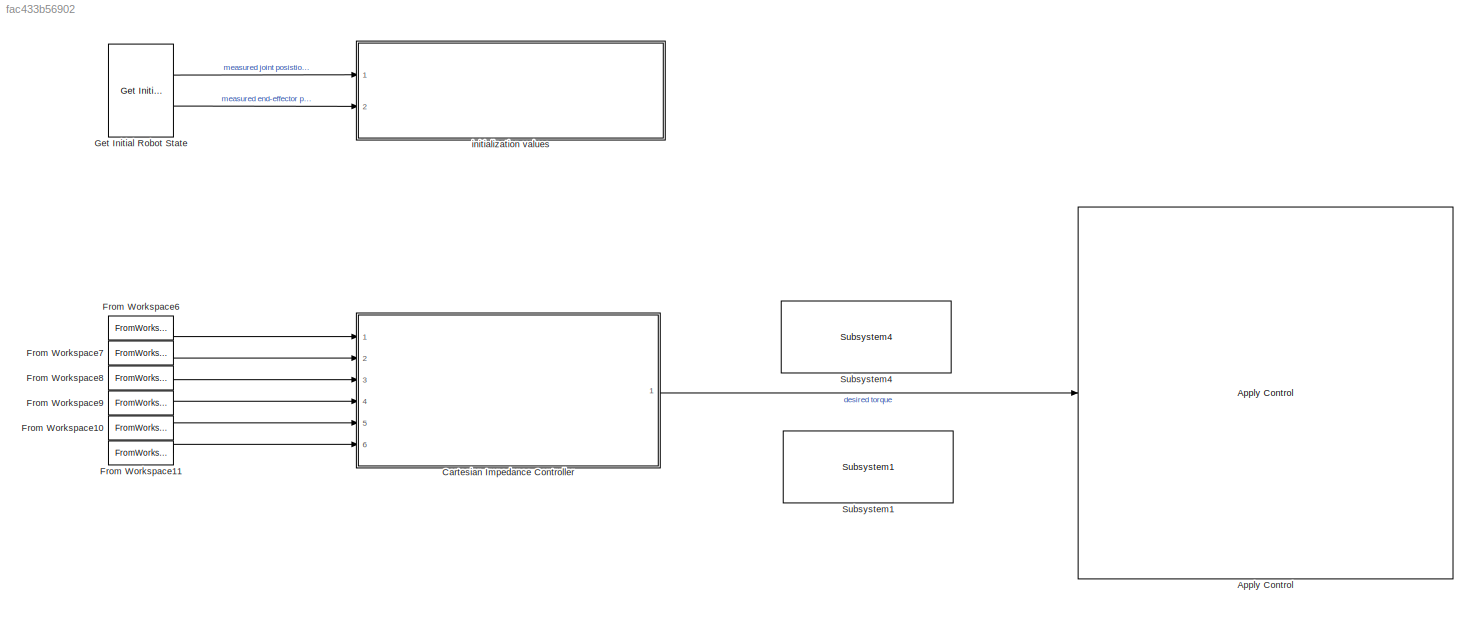
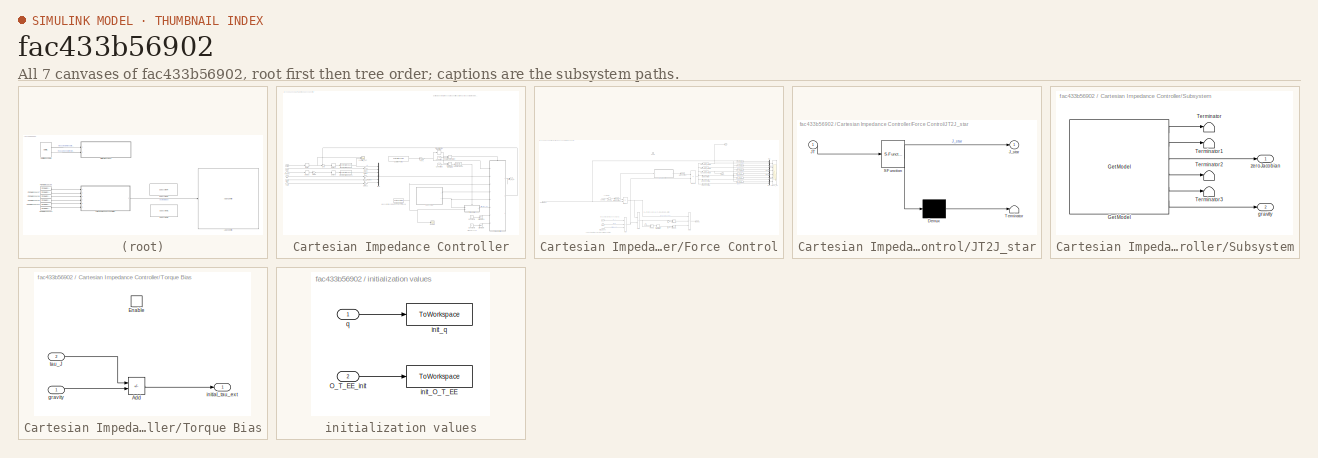
[diagram: thumbnail index - all 7 canvases of the model, root first then tree order]
MODEL slx_fac433b56902
KIND model
CONFIG AbsTol = auto
CONFIG EnableMultiTasking = on
CONFIG FixedStep = 0.001
CONFIG MaxStep = auto
CONFIG MinStep = auto
CONFIG PreLoadFcn = demos_common_configs();
CONFIG RelTol = 1e-3
CONFIG SampleTimeConstraint = Unconstrained
CONFIG SolverName = FixedStepDiscrete
CONFIG StartTime = 0.0
CONFIG StopTime = inf
BLOCK [Reference] Apply Control  REF=franka_simulink_library/Apply Control
  Ports = [1]
  SourceBlock = franka_simulink_library/Apply Control
  SourceProductName = Franka Emika
  UserDataPersistent = on
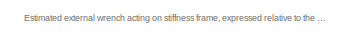
[diagram: Cartesian Impedance Controller - part 1/3, top right region]
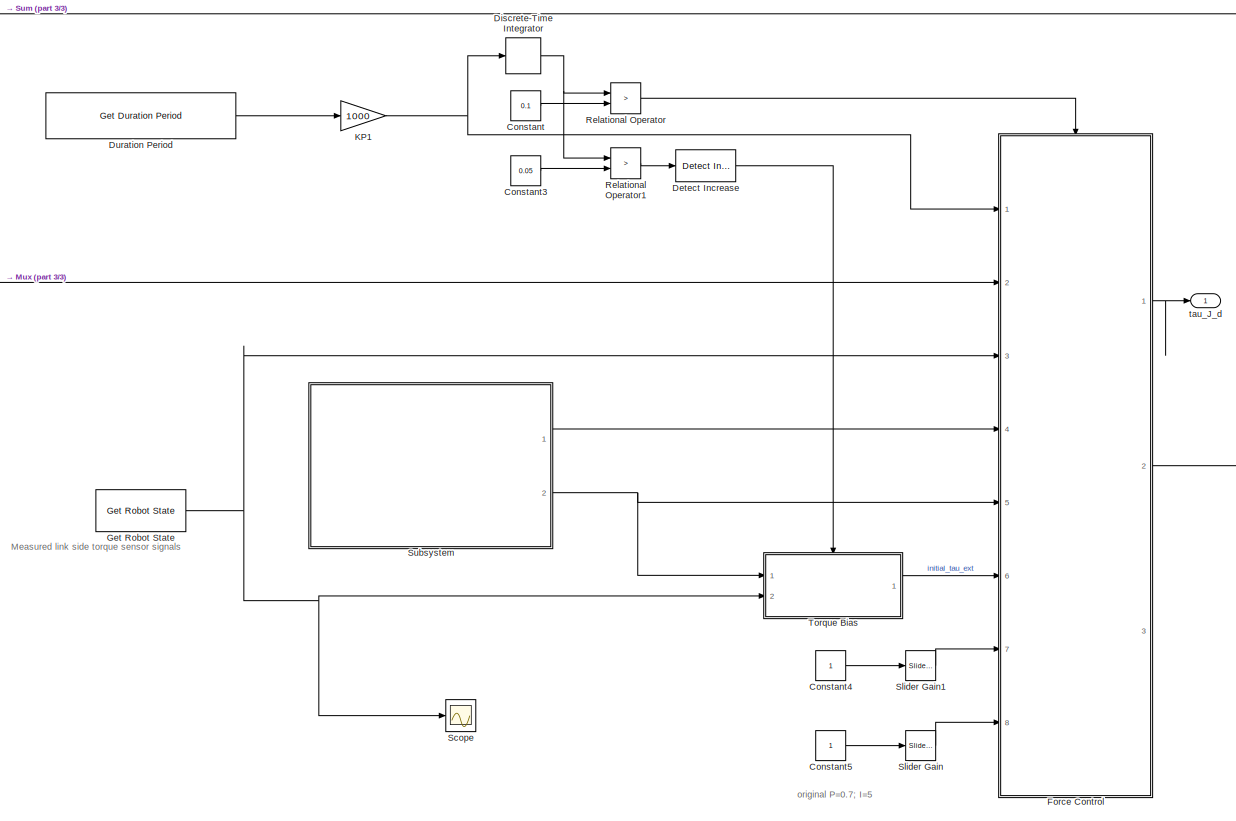
[diagram: Cartesian Impedance Controller - part 2/3, bottom right region]
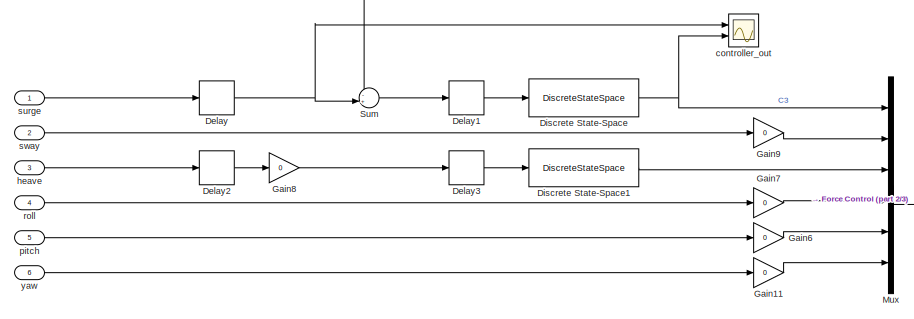
[diagram: Cartesian Impedance Controller - part 3/3, middle left region]
BLOCK [SubSystem] Cartesian Impedance Controller
  Ports = [6, 1]
  RequestExecContextInheritance = off
BLOCK [Constant] Cartesian Impedance Controller/Constant
  Value = 0.1
BLOCK [Constant] Cartesian Impedance Controller/Constant3
  Value = 0.05
BLOCK [Constant] Cartesian Impedance Controller/Constant4
BLOCK [Constant] Cartesian Impedance Controller/Constant5
BLOCK [Delay] Cartesian Impedance Controller/Delay
  DelayLength = 100
  InputPortMap = u0
  Ports = [1, 1]
BLOCK [Delay] Cartesian Impedance Controller/Delay1
  DelayLength = 1
  InputPortMap = u0
  Ports = [1, 1]
BLOCK [Delay] Cartesian Impedance Controller/Delay2
  DelayLength = 100
  InputPortMap = u0
  Ports = [1, 1]
BLOCK [Delay] Cartesian Impedance Controller/Delay3
  Commented = through
  DelayLength = 1
  InputPortMap = u0
  Ports = [1, 1]
BLOCK [Reference] Cartesian Impedance Controller/Detect Increase  REF=simulink/Logic and Bit
Operations/Detect
Increase
  Ports = [1, 1]
  SourceBlock = simulink/Logic and Bit\nOperations/Detect\nIncrease
  SourceProductBaseCode = SL
  SourceType = Detect Increase
BLOCK [DiscreteStateSpace] Cartesian Impedance Controller/Discrete State-Space
  A = a
  B = b
  C = c
  D = d
  SampleTime = 1e-3
BLOCK [DiscreteStateSpace] Cartesian Impedance Controller/Discrete State-Space1
  A = heave_a
  B = heave_b
  C = heave_c
  Commented = through
  D = heave_d
  SampleTime = 1e-3
BLOCK [DiscreteIntegrator] Cartesian Impedance Controller/Discrete-Time Integrator
  ICPrevOutput = DiscIntNeverNeededParam
  ICPrevScaledInput = DiscIntNeverNeededParam
  Ports = [1, 1]
  SampleTime = -1
BLOCK [Reference] Cartesian Impedance Controller/Duration Period  REF=franka_simulink_library/Get Duration Period
  Ports = [0, 1]
  SourceBlock = franka_simulink_library/Get Duration Period
  SourceProductName = Franka Emika
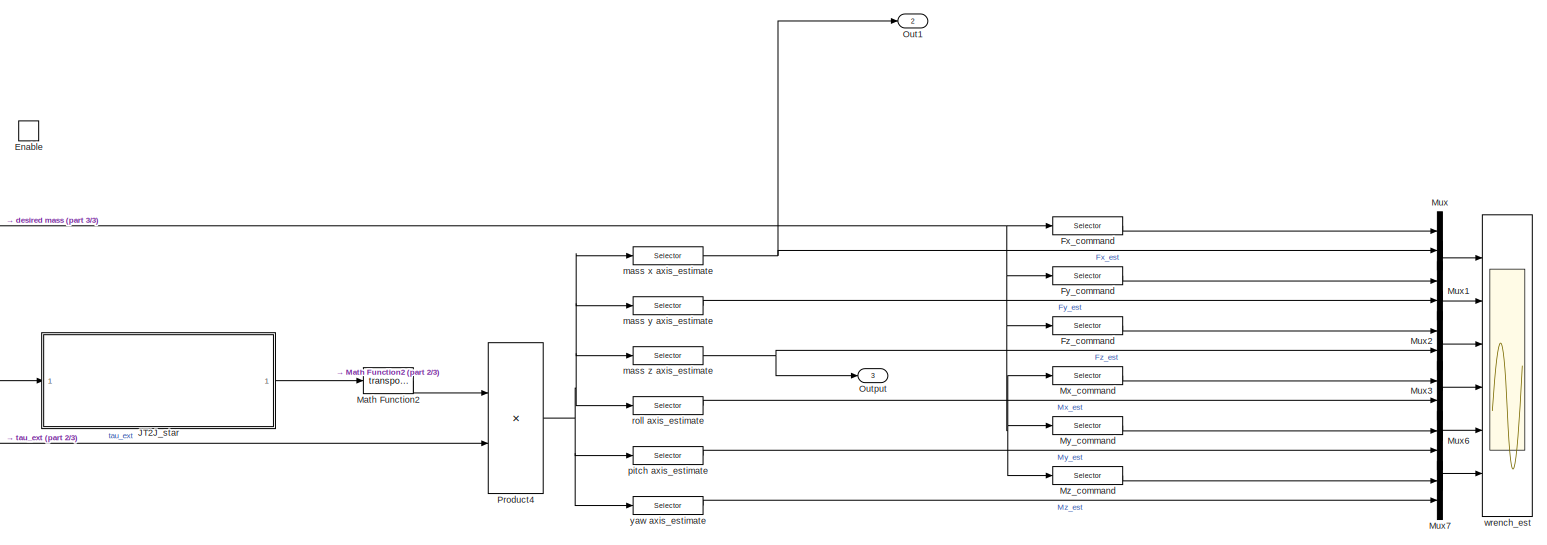
[diagram: Cartesian Impedance Controller/Force Control - part 1/3, top right region]
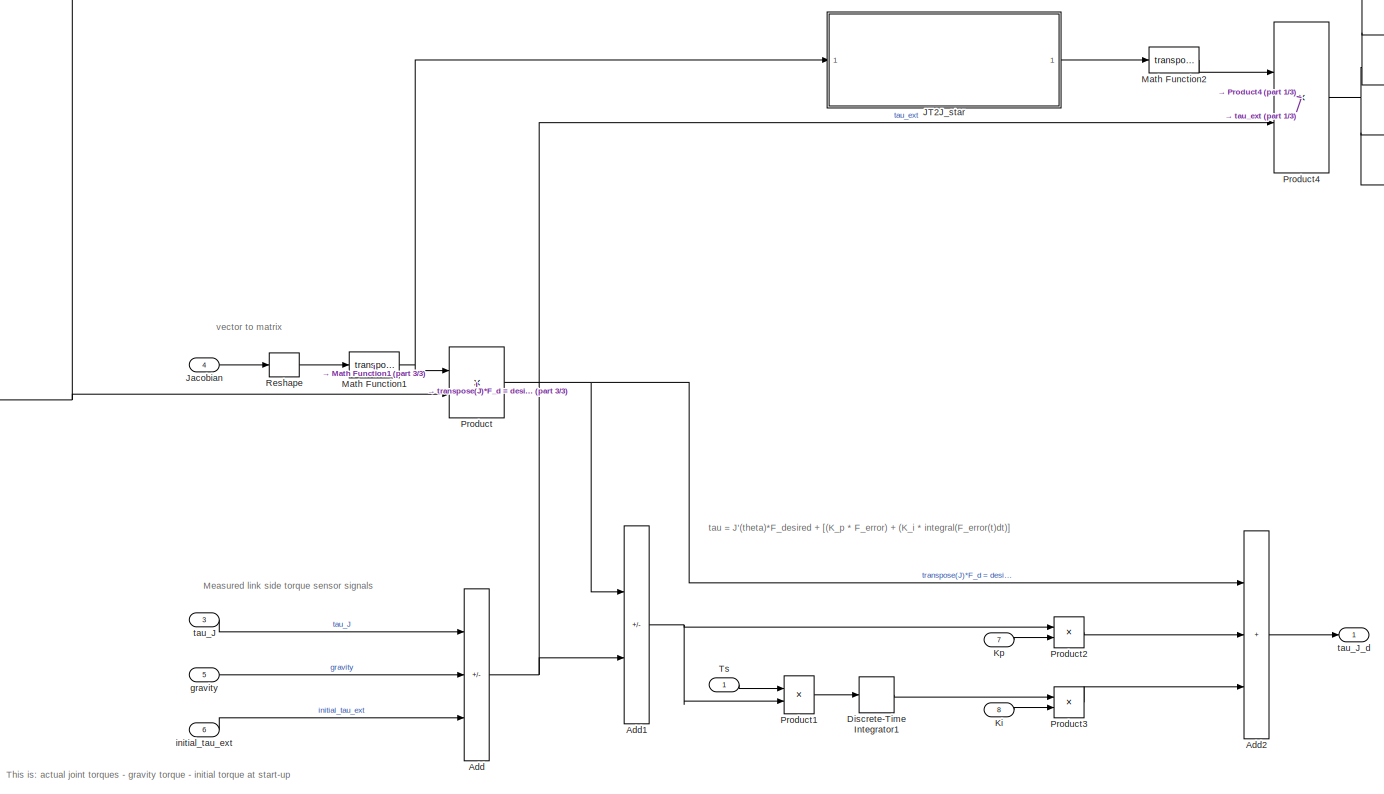
[diagram: Cartesian Impedance Controller/Force Control - part 2/3, central region]
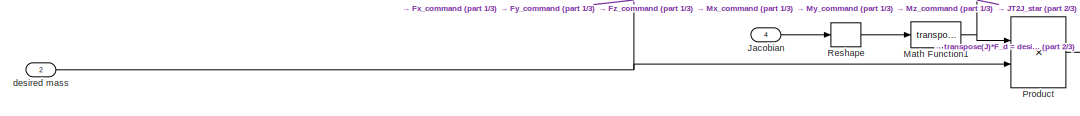
[diagram: Cartesian Impedance Controller/Force Control - part 3/3, middle left region]
BLOCK [SubSystem] Cartesian Impedance Controller/Force Control
  Ports = [8, 3, 1]
  RequestExecContextInheritance = off
BLOCK [Selector] Cartesian Impedance Controller/Force Control/ roll axis_estimate
  IndexOptions = Index vector (dialog)
  Indices = 4
  InputPortWidth = 6
  OutputSizes = 1
  Ports = [1, 1]
BLOCK [Sum] Cartesian Impedance Controller/Force Control/Add
  IconShape = rectangular
  Inputs = +--
  Ports = [3, 1]
BLOCK [Sum] Cartesian Impedance Controller/Force Control/Add1
  IconShape = rectangular
  Inputs = +-
  Ports = [2, 1]
BLOCK [Sum] Cartesian Impedance Controller/Force Control/Add2
  IconShape = rectangular
  Inputs = +++
  Ports = [3, 1]
BLOCK [DiscreteIntegrator] Cartesian Impedance Controller/Force Control/Discrete-Time Integrator1
  ICPrevOutput = DiscIntNeverNeededParam
  ICPrevScaledInput = DiscIntNeverNeededParam
  Ports = [1, 1]
  SampleTime = 0.001
BLOCK [EnablePort] Cartesian Impedance Controller/Force Control/Enable
  Ports = []
BLOCK [Selector] Cartesian Impedance Controller/Force Control/Fx_command
  IndexOptions = Index vector (dialog)
  Indices = 1
  InputPortWidth = 6
  OutputSizes = 1
  Ports = [1, 1]
BLOCK [Selector] Cartesian Impedance Controller/Force Control/Fy_command
  IndexOptions = Index vector (dialog)
  Indices = 2
  InputPortWidth = 6
  OutputSizes = 1
  Ports = [1, 1]
BLOCK [Selector] Cartesian Impedance Controller/Force Control/Fz_command
  IndexOptions = Index vector (dialog)
  Indices = 3
  InputPortWidth = 6
  OutputSizes = 1
  Ports = [1, 1]
BLOCK [SubSystem] Cartesian Impedance Controller/Force Control/JT2J_star
  ErrorFcn = Stateflow.Translate.translate
  PermitHierarchicalResolution = ExplicitOnly
  Ports = [1, 1]
  RequestExecContextInheritance = off
  SFBlockType = MATLAB Function
  TreatAsAtomicUnit = on
BLOCK [Demux] Cartesian Impedance Controller/Force Control/JT2J_star/ Demux 
  Outputs = 1
  Ports = [1, 1]
BLOCK [S-Function] Cartesian Impedance Controller/Force Control/JT2J_star/ SFunction 
  EnableBusSupport = on
  FunctionName = sf_sfun
  PortCounts = [1 2]
  Ports = [1, 2]
  SFcnIsStateOwnerBlock = off
  SFunctionDeploymentMode = off
  Tag = Stateflow S-Function 15
BLOCK [Terminator] Cartesian Impedance Controller/Force Control/JT2J_star/ Terminator 
BLOCK [Inport] Cartesian Impedance Controller/Force Control/JT2J_star/JT
BLOCK [Outport] Cartesian Impedance Controller/Force Control/JT2J_star/J_star
  VectorParamsAs1DForOutWhenUnconnected = off
BLOCK [Inport] Cartesian Impedance Controller/Force Control/Jacobian
  Port = 4
BLOCK [Inport] Cartesian Impedance Controller/Force Control/Ki
  Port = 8
BLOCK [Inport] Cartesian Impedance Controller/Force Control/Kp
  Port = 7
BLOCK [Math] Cartesian Impedance Controller/Force Control/Math Function1
  Operator = transpose
  Ports = [1, 1]
  SignedPower = on
BLOCK [Math] Cartesian Impedance Controller/Force Control/Math Function2
  Operator = transpose
  Ports = [1, 1]
  SignedPower = on
BLOCK [Mux] Cartesian Impedance Controller/Force Control/Mux
  DisplayOption = bar
  Inputs = 2
  Ports = [2, 1]
BLOCK [Mux] Cartesian Impedance Controller/Force Control/Mux1
  DisplayOption = bar
  Inputs = 2
  Ports = [2, 1]
BLOCK [Mux] Cartesian Impedance Controller/Force Control/Mux2
  DisplayOption = bar
  Inputs = 2
  Ports = [2, 1]
BLOCK [Mux] Cartesian Impedance Controller/Force Control/Mux3
  DisplayOption = bar
  Inputs = 2
  Ports = [2, 1]
BLOCK [Mux] Cartesian Impedance Controller/Force Control/Mux6
  DisplayOption = bar
  Inputs = 2
  Ports = [2, 1]
BLOCK [Mux] Cartesian Impedance Controller/Force Control/Mux7
  DisplayOption = bar
  Inputs = 2
  Ports = [2, 1]
BLOCK [Selector] Cartesian Impedance Controller/Force Control/Mx_command
  IndexOptions = Index vector (dialog)
  Indices = 4
  InputPortWidth = 6
  OutputSizes = 1
  Ports = [1, 1]
BLOCK [Selector] Cartesian Impedance Controller/Force Control/My_command
  IndexOptions = Index vector (dialog)
  Indices = 5
  InputPortWidth = 6
  OutputSizes = 1
  Ports = [1, 1]
BLOCK [Selector] Cartesian Impedance Controller/Force Control/Mz_command
  IndexOptions = Index vector (dialog)
  Indices = 6
  InputPortWidth = 6
  OutputSizes = 1
  Ports = [1, 1]
BLOCK [Outport] Cartesian Impedance Controller/Force Control/Out1
  Port = 2
BLOCK [Outport] Cartesian Impedance Controller/Force Control/Output
  Port = 3
BLOCK [Product] Cartesian Impedance Controller/Force Control/Product
  Multiplication = Matrix(*)
  Ports = [2, 1]
BLOCK [Product] Cartesian Impedance Controller/Force Control/Product1
  Ports = [2, 1]
BLOCK [Product] Cartesian Impedance Controller/Force Control/Product2
  Ports = [2, 1]
BLOCK [Product] Cartesian Impedance Controller/Force Control/Product3
  Ports = [2, 1]
BLOCK [Product] Cartesian Impedance Controller/Force Control/Product4
  Multiplication = Matrix(*)
  Ports = [2, 1]
BLOCK [Reshape] Cartesian Impedance Controller/Force Control/Reshape
  OutputDimensionality = Customize
  OutputDimensions = [6,7]
  Ports = [1, 1]
BLOCK [Inport] Cartesian Impedance Controller/Force Control/Ts
  NameLocation = top
BLOCK [Inport] Cartesian Impedance Controller/Force Control/desired mass
  Port = 2
BLOCK [Inport] Cartesian Impedance Controller/Force Control/gravity
  Port = 5
BLOCK [Inport] Cartesian Impedance Controller/Force Control/initial_tau_ext
  Port = 6
BLOCK [Selector] Cartesian Impedance Controller/Force Control/mass x axis_estimate
  IndexOptions = Index vector (dialog)
  Indices = 1
  InputPortWidth = 6
  OutputSizes = 1
  Ports = [1, 1]
BLOCK [Selector] Cartesian Impedance Controller/Force Control/mass y axis_estimate
  IndexOptions = Index vector (dialog)
  Indices = 2
  InputPortWidth = 6
  OutputSizes = 1
  Ports = [1, 1]
BLOCK [Selector] Cartesian Impedance Controller/Force Control/mass z axis_estimate
  IndexOptions = Index vector (dialog)
  Indices = 3
  InputPortWidth = 6
  OutputSizes = 1
  Ports = [1, 1]
BLOCK [Selector] Cartesian Impedance Controller/Force Control/pitch axis_estimate
  IndexOptions = Index vector (dialog)
  Indices = 5
  InputPortWidth = 6
  OutputSizes = 1
  Ports = [1, 1]
BLOCK [Inport] Cartesian Impedance Controller/Force Control/tau_J
  Port = 3
BLOCK [Outport] Cartesian Impedance Controller/Force Control/tau_J_d
  InitialOutput = [0 0 0 0 0 0 0]
  VectorParamsAs1DForOutWhenUnconnected = off
BLOCK [Scope] Cartesian Impedance Controller/Force Control/wrench_est
  ExtModeUploadOption = log
  Floating = off
  NumInputPorts = 6
  Ports = [6]
  ScopeSpecificationString = Simulink.scopes.TimeScopeBlockCfg('CurrentConfiguration', extmgr.ConfigurationSet(extmgr.Configuration('Core','General UI',true),extmgr.Configuration('Core','Source UI',true),extmgr.Configuration('Sources','WiredSimulink',true,'DataLoggingVariableName','FT_est','DataLogging',true,'DataLoggingSaveFormat','StructureWithTime'),extmgr.Configuration('Visuals','Time Domain',true,'SerializedDisplays',{st...<+4963ch>
BLOCK [Selector] Cartesian Impedance Controller/Force Control/yaw axis_estimate
  IndexOptions = Index vector (dialog)
  Indices = 6
  InputPortWidth = 6
  OutputSizes = 1
  Ports = [1, 1]
BLOCK [Gain] Cartesian Impedance Controller/Gain11
  Gain = 0
BLOCK [Gain] Cartesian Impedance Controller/Gain6
  Gain = 0
BLOCK [Gain] Cartesian Impedance Controller/Gain7
  Gain = 0
BLOCK [Gain] Cartesian Impedance Controller/Gain8
  Gain = 0
BLOCK [Gain] Cartesian Impedance Controller/Gain9
  Gain = 0
BLOCK [Reference] Cartesian Impedance Controller/Get Robot State  REF=franka_simulink_library/Get Robot State
  Ports = [0, 1]
  SourceBlock = franka_simulink_library/Get Robot State
  SourceProductName = Franka Emika
BLOCK [Gain] Cartesian Impedance Controller/KP1
  Gain = 1000
BLOCK [Mux] Cartesian Impedance Controller/Mux
  DisplayOption = bar
  Inputs = 6
  Ports = [6, 1]
BLOCK [RelationalOperator] Cartesian Impedance Controller/Relational Operator
  InputSameDT = off
  Operator = >
  OutDataTypeStr = boolean
  Ports = [2, 1]
BLOCK [RelationalOperator] Cartesian Impedance Controller/Relational Operator1
  InputSameDT = off
  Operator = >
  OutDataTypeStr = boolean
  Ports = [2, 1]
BLOCK [Scope] Cartesian Impedance Controller/Scope
  Floating = off
  NumInputPorts = 1
  Ports = [1]
  ScopeSpecificationString = Simulink.scopes.TimeScopeBlockCfg('CurrentConfiguration', extmgr.ConfigurationSet(extmgr.Configuration('Core','General UI',true),extmgr.Configuration('Core','Source UI',true),extmgr.Configuration('Sources','WiredSimulink',true,'DataLoggingVariableName','ScopeData1'),extmgr.Configuration('Visuals','Time Domain',true,'SerializedDisplays',{struct('MinYLimReal','-1.33587','MaxYLimReal','-1.1667','YLab...<+1571ch>
BLOCK [Reference] Cartesian Impedance Controller/Slider Gain  REF=simulink/Math
Operations/Slider
Gain
  Ports = [1, 1]
  SourceBlock = simulink/Math\nOperations/Slider\nGain
  SourceProductBaseCode = SL
  SourceType = Slider Gain
BLOCK [Reference] Cartesian Impedance Controller/Slider Gain1  REF=simulink/Math
Operations/Slider
Gain
  Ports = [1, 1]
  SourceBlock = simulink/Math\nOperations/Slider\nGain
  SourceProductBaseCode = SL
  SourceType = Slider Gain
BLOCK [SubSystem] Cartesian Impedance Controller/Subsystem
  Ports = [0, 2]
  RequestExecContextInheritance = off
BLOCK [Reference] Cartesian Impedance Controller/Subsystem/Get Model  REF=franka_simulink_library/Get Model
  Ports = [0, 6]
  SourceBlock = franka_simulink_library/Get Model
  SourceProductName = Franka Emika
BLOCK [Terminator] Cartesian Impedance Controller/Subsystem/Terminator
BLOCK [Terminator] Cartesian Impedance Controller/Subsystem/Terminator1
BLOCK [Terminator] Cartesian Impedance Controller/Subsystem/Terminator2
BLOCK [Terminator] Cartesian Impedance Controller/Subsystem/Terminator3
BLOCK [Outport] Cartesian Impedance Controller/Subsystem/gravity
  Port = 2
  VectorParamsAs1DForOutWhenUnconnected = off
BLOCK [Outport] Cartesian Impedance Controller/Subsystem/zeroJacobian
  VectorParamsAs1DForOutWhenUnconnected = off
BLOCK [Sum] Cartesian Impedance Controller/Sum
  Inputs = -+|
  Ports = [2, 1]
BLOCK [SubSystem] Cartesian Impedance Controller/Torque Bias
  Ports = [2, 1, 1]
  RequestExecContextInheritance = off
BLOCK [Sum] Cartesian Impedance Controller/Torque Bias/Add
  IconShape = rectangular
  Inputs = +-
  Ports = [2, 1]
BLOCK [EnablePort] Cartesian Impedance Controller/Torque Bias/Enable
  Ports = []
BLOCK [Inport] Cartesian Impedance Controller/Torque Bias/gravity
BLOCK [Outport] Cartesian Impedance Controller/Torque Bias/initial_tau_ext
  InitialOutput = [0 0 0 0 0 0 0]
  VectorParamsAs1DForOutWhenUnconnected = off
BLOCK [Inport] Cartesian Impedance Controller/Torque Bias/tau_J
  Port = 2
BLOCK [Scope] Cartesian Impedance Controller/controller_out
  ExtModeUploadOption = log
  Floating = off
  NumInputPorts = 2
  Ports = [2]
  ScopeSpecificationString = Simulink.scopes.TimeScopeBlockCfg('CurrentConfiguration', extmgr.ConfigurationSet(extmgr.Configuration('Core','General UI',true),extmgr.Configuration('Core','Source UI',true),extmgr.Configuration('Sources','WiredSimulink',true,'DataLoggingVariableName','ScopeData1'),extmgr.Configuration('Visuals','Time Domain',true,'SerializedDisplays',{struct('MinYLimReal','-5.42516','MaxYLimReal','8.44546','YLab...<+1829ch>
BLOCK [Inport] Cartesian Impedance Controller/heave
  Port = 3
BLOCK [Inport] Cartesian Impedance Controller/pitch
  Port = 5
BLOCK [Inport] Cartesian Impedance Controller/roll
  Port = 4
BLOCK [Inport] Cartesian Impedance Controller/surge
BLOCK [Inport] Cartesian Impedance Controller/sway
  Port = 2
BLOCK [Outport] Cartesian Impedance Controller/tau_J_d
  NameLocation = top
  VectorParamsAs1DForOutWhenUnconnected = off
BLOCK [Inport] Cartesian Impedance Controller/yaw
  Port = 6
BLOCK [FromWorkspace] From Workspace10
  VariableName = rn5_ts
BLOCK [FromWorkspace] From Workspace11
  VariableName = rn6_ts
BLOCK [FromWorkspace] From Workspace6
  VariableName = rn1_ts
BLOCK [FromWorkspace] From Workspace7
  VariableName = rn2_ts
BLOCK [FromWorkspace] From Workspace8
  VariableName = rn3_ts
BLOCK [FromWorkspace] From Workspace9
  VariableName = rn4_ts
BLOCK [Reference] Get Initial Robot State  REF=franka_simulink_library/Get Initial Robot State
  Ports = [0, 2]
  SourceBlock = franka_simulink_library/Get Initial Robot State
  SourceProductName = Franka Emika
BLOCK [Reference] Subsystem1  REF=franka_simulink_library_misc/Subsystem1
  Ports = []
  SourceBlock = franka_simulink_library_misc/Subsystem1
BLOCK [Reference] Subsystem4  REF=franka_simulink_library_misc/Subsystem4
  Ports = []
  SourceBlock = franka_simulink_library_misc/Subsystem4
BLOCK [SubSystem] initialization values
  NameLocation = top
  Ports = [2]
  RequestExecContextInheritance = off
BLOCK [Inport] initialization values/O_T_EE_init
  Port = 2
BLOCK [ToWorkspace] initialization values/init_O_T_EE
  ExtModeUploadOption = log
  FixptAsFi = on
  MaxDataPoints = inf
  Ports = [1]
  SampleTime = -1
  SaveFormat = Structure With Time
  VariableName = init_O_T_EE
BLOCK [ToWorkspace] initialization values/init_q
  ExtModeUploadOption = log
  FixptAsFi = on
  MaxDataPoints = inf
  Ports = [1]
  SampleTime = -1
  SaveFormat = Structure With Time
  VariableName = init_q
BLOCK [Inport] initialization values/q
ANNOTATION Cartesian Impedance Controller: Estimated external wrench acting on stiffness frame, expressed relative to the stiffness frame. It is the difference between the current torque sensor values and the computed torque, based on the dynamic model of the robot.
ANNOTATION Cartesian Impedance Controller: Measured link side torque sensor signals
ANNOTATION Cartesian Impedance Controller: original P=0.7; I=5
ANNOTATION Cartesian Impedance Controller/Force Control: Measured link side torque sensor signals
ANNOTATION Cartesian Impedance Controller/Force Control: This is: actual joint torques - gravity torque - initial torque at start-up
ANNOTATION Cartesian Impedance Controller/Force Control: tau = J'(theta)*F_desired + [(K_p * F_error) + (K_i * integral(F_error(t)dt)]
ANNOTATION Cartesian Impedance Controller/Force Control: vector to matrix
LINE Cartesian Impedance Controller/Constant3:1 -> Cartesian Impedance Controller/Relational Operator1:2
LINE Cartesian Impedance Controller/Constant4:1 -> Cartesian Impedance Controller/Slider Gain1:1
LINE Cartesian Impedance Controller/Constant5:1 -> Cartesian Impedance Controller/Slider Gain:1
LINE Cartesian Impedance Controller/Constant:1 -> Cartesian Impedance Controller/Relational Operator:2
LINE Cartesian Impedance Controller/Delay1:1 -> Cartesian Impedance Controller/Discrete State-Space:1
LINE Cartesian Impedance Controller/Delay2:1 -> Cartesian Impedance Controller/Gain8:1
LINE Cartesian Impedance Controller/Delay3:1 -> Cartesian Impedance Controller/Discrete State-Space1:1
NET Cartesian Impedance Controller/Delay:1 -> Cartesian Impedance Controller/Sum:2, Cartesian Impedance Controller/controller_out:1
LINE Cartesian Impedance Controller/Detect Increase:1 -> Cartesian Impedance Controller/Torque Bias:enable
LINE Cartesian Impedance Controller/Discrete State-Space1:1 -> Cartesian Impedance Controller/Mux:3
NET Cartesian Impedance Controller/Discrete State-Space:1 -> Cartesian Impedance Controller/Mux:1, Cartesian Impedance Controller/controller_out:2
NET Cartesian Impedance Controller/Discrete-Time Integrator:1 -> Cartesian Impedance Controller/Relational Operator1:1, Cartesian Impedance Controller/Relational Operator:1
LINE Cartesian Impedance Controller/Duration Period:1 -> Cartesian Impedance Controller/KP1:1
LINE Cartesian Impedance Controller/Force Control/ roll axis_estimate:1 -> Cartesian Impedance Controller/Force Control/Mux3:2
NET Cartesian Impedance Controller/Force Control/Add1:1 -> Cartesian Impedance Controller/Force Control/Product1:2, Cartesian Impedance Controller/Force Control/Product2:1
LINE Cartesian Impedance Controller/Force Control/Add2:1 -> Cartesian Impedance Controller/Force Control/tau_J_d:1
NET Cartesian Impedance Controller/Force Control/Add:1 -> Cartesian Impedance Controller/Force Control/Add1:2, Cartesian Impedance Controller/Force Control/Product4:2
LINE Cartesian Impedance Controller/Force Control/Discrete-Time Integrator1:1 -> Cartesian Impedance Controller/Force Control/Product3:1
LINE Cartesian Impedance Controller/Force Control/Fx_command:1 -> Cartesian Impedance Controller/Force Control/Mux:1
LINE Cartesian Impedance Controller/Force Control/Fy_command:1 -> Cartesian Impedance Controller/Force Control/Mux1:1
LINE Cartesian Impedance Controller/Force Control/Fz_command:1 -> Cartesian Impedance Controller/Force Control/Mux2:1
LINE Cartesian Impedance Controller/Force Control/JT2J_star:1 -> Cartesian Impedance Controller/Force Control/Math Function2:1
LINE Cartesian Impedance Controller/Force Control/Jacobian:1 -> Cartesian Impedance Controller/Force Control/Reshape:1
LINE Cartesian Impedance Controller/Force Control/Ki:1 -> Cartesian Impedance Controller/Force Control/Product3:2
LINE Cartesian Impedance Controller/Force Control/Kp:1 -> Cartesian Impedance Controller/Force Control/Product2:2
NET Cartesian Impedance Controller/Force Control/Math Function1:1 -> Cartesian Impedance Controller/Force Control/JT2J_star:1, Cartesian Impedance Controller/Force Control/Product:1
LINE Cartesian Impedance Controller/Force Control/Math Function2:1 -> Cartesian Impedance Controller/Force Control/Product4:1
LINE Cartesian Impedance Controller/Force Control/Mux1:1 -> Cartesian Impedance Controller/Force Control/wrench_est:2
LINE Cartesian Impedance Controller/Force Control/Mux2:1 -> Cartesian Impedance Controller/Force Control/wrench_est:3
LINE Cartesian Impedance Controller/Force Control/Mux3:1 -> Cartesian Impedance Controller/Force Control/wrench_est:4
LINE Cartesian Impedance Controller/Force Control/Mux6:1 -> Cartesian Impedance Controller/Force Control/wrench_est:5
LINE Cartesian Impedance Controller/Force Control/Mux7:1 -> Cartesian Impedance Controller/Force Control/wrench_est:6
LINE Cartesian Impedance Controller/Force Control/Mux:1 -> Cartesian Impedance Controller/Force Control/wrench_est:1
LINE Cartesian Impedance Controller/Force Control/Mx_command:1 -> Cartesian Impedance Controller/Force Control/Mux3:1
LINE Cartesian Impedance Controller/Force Control/My_command:1 -> Cartesian Impedance Controller/Force Control/Mux6:1
LINE Cartesian Impedance Controller/Force Control/Mz_command:1 -> Cartesian Impedance Controller/Force Control/Mux7:1
LINE Cartesian Impedance Controller/Force Control/Product1:1 -> Cartesian Impedance Controller/Force Control/Discrete-Time Integrator1:1
LINE Cartesian Impedance Controller/Force Control/Product2:1 -> Cartesian Impedance Controller/Force Control/Add2:2
LINE Cartesian Impedance Controller/Force Control/Product3:1 -> Cartesian Impedance Controller/Force Control/Add2:3
NET Cartesian Impedance Controller/Force Control/Product4:1 -> Cartesian Impedance Controller/Force Control/ roll axis_estimate:1, Cartesian Impedance Controller/Force Control/mass x axis_estimate:1, Cartesian Impedance Controller/Force Control/mass y axis_estimate:1, Cartesian Impedance Controller/Force Control/mass z axis_estimate:1, Cartesian Impedance Controller/Force Control/pitch axis_estimate:1, Cartesian Impedance Controller/Force Control/yaw axis_estimate:1
NET Cartesian Impedance Controller/Force Control/Product:1 -> Cartesian Impedance Controller/Force Control/Add1:1, Cartesian Impedance Controller/Force Control/Add2:1
LINE Cartesian Impedance Controller/Force Control/Reshape:1 -> Cartesian Impedance Controller/Force Control/Math Function1:1
LINE Cartesian Impedance Controller/Force Control/Ts:1 -> Cartesian Impedance Controller/Force Control/Product1:1
NET Cartesian Impedance Controller/Force Control/desired mass:1 -> Cartesian Impedance Controller/Force Control/Fx_command:1, Cartesian Impedance Controller/Force Control/Fy_command:1, Cartesian Impedance Controller/Force Control/Fz_command:1, Cartesian Impedance Controller/Force Control/Mx_command:1, Cartesian Impedance Controller/Force Control/My_command:1, Cartesian Impedance Controller/Force Control/Mz_command:1, Cartesian Impedance Controller/Force Control/Product:2
LINE Cartesian Impedance Controller/Force Control/gravity:1 -> Cartesian Impedance Controller/Force Control/Add:2
LINE Cartesian Impedance Controller/Force Control/initial_tau_ext:1 -> Cartesian Impedance Controller/Force Control/Add:3
NET Cartesian Impedance Controller/Force Control/mass x axis_estimate:1 -> Cartesian Impedance Controller/Force Control/Mux:2, Cartesian Impedance Controller/Force Control/Out1:1
LINE Cartesian Impedance Controller/Force Control/mass y axis_estimate:1 -> Cartesian Impedance Controller/Force Control/Mux1:2
NET Cartesian Impedance Controller/Force Control/mass z axis_estimate:1 -> Cartesian Impedance Controller/Force Control/Mux2:2, Cartesian Impedance Controller/Force Control/Output:1
LINE Cartesian Impedance Controller/Force Control/pitch axis_estimate:1 -> Cartesian Impedance Controller/Force Control/Mux6:2
LINE Cartesian Impedance Controller/Force Control/tau_J:1 -> Cartesian Impedance Controller/Force Control/Add:1
LINE Cartesian Impedance Controller/Force Control/yaw axis_estimate:1 -> Cartesian Impedance Controller/Force Control/Mux7:2
LINE Cartesian Impedance Controller/Force Control:1 -> Cartesian Impedance Controller/tau_J_d:1
LINE Cartesian Impedance Controller/Force Control:2 -> Cartesian Impedance Controller/Sum:1
LINE Cartesian Impedance Controller/Gain11:1 -> Cartesian Impedance Controller/Mux:6
LINE Cartesian Impedance Controller/Gain6:1 -> Cartesian Impedance Controller/Mux:5
LINE Cartesian Impedance Controller/Gain7:1 -> Cartesian Impedance Controller/Mux:4
LINE Cartesian Impedance Controller/Gain8:1 -> Cartesian Impedance Controller/Delay3:1
LINE Cartesian Impedance Controller/Gain9:1 -> Cartesian Impedance Controller/Mux:2
NET Cartesian Impedance Controller/Get Robot State:1 -> Cartesian Impedance Controller/Force Control:3, Cartesian Impedance Controller/Scope:1, Cartesian Impedance Controller/Torque Bias:2
NET Cartesian Impedance Controller/KP1:1 -> Cartesian Impedance Controller/Discrete-Time Integrator:1, Cartesian Impedance Controller/Force Control:1
LINE Cartesian Impedance Controller/Mux:1 -> Cartesian Impedance Controller/Force Control:2
LINE Cartesian Impedance Controller/Relational Operator1:1 -> Cartesian Impedance Controller/Detect Increase:1
LINE Cartesian Impedance Controller/Relational Operator:1 -> Cartesian Impedance Controller/Force Control:enable
LINE Cartesian Impedance Controller/Slider Gain1:1 -> Cartesian Impedance Controller/Force Control:7
LINE Cartesian Impedance Controller/Slider Gain:1 -> Cartesian Impedance Controller/Force Control:8
LINE Cartesian Impedance Controller/Subsystem/Get Model:1 -> Cartesian Impedance Controller/Subsystem/Terminator:1
LINE Cartesian Impedance Controller/Subsystem/Get Model:2 -> Cartesian Impedance Controller/Subsystem/Terminator1:1
LINE Cartesian Impedance Controller/Subsystem/Get Model:3 -> Cartesian Impedance Controller/Subsystem/zeroJacobian:1
LINE Cartesian Impedance Controller/Subsystem/Get Model:4 -> Cartesian Impedance Controller/Subsystem/Terminator2:1
LINE Cartesian Impedance Controller/Subsystem/Get Model:5 -> Cartesian Impedance Controller/Subsystem/Terminator3:1
LINE Cartesian Impedance Controller/Subsystem/Get Model:6 -> Cartesian Impedance Controller/Subsystem/gravity:1
LINE Cartesian Impedance Controller/Subsystem:1 -> Cartesian Impedance Controller/Force Control:4
NET Cartesian Impedance Controller/Subsystem:2 -> Cartesian Impedance Controller/Force Control:5, Cartesian Impedance Controller/Torque Bias:1
LINE Cartesian Impedance Controller/Sum:1 -> Cartesian Impedance Controller/Delay1:1
LINE Cartesian Impedance Controller/Torque Bias/Add:1 -> Cartesian Impedance Controller/Torque Bias/initial_tau_ext:1
LINE Cartesian Impedance Controller/Torque Bias/gravity:1 -> Cartesian Impedance Controller/Torque Bias/Add:2
LINE Cartesian Impedance Controller/Torque Bias/tau_J:1 -> Cartesian Impedance Controller/Torque Bias/Add:1
LINE Cartesian Impedance Controller/Torque Bias:1 -> Cartesian Impedance Controller/Force Control:6
LINE Cartesian Impedance Controller/heave:1 -> Cartesian Impedance Controller/Delay2:1
LINE Cartesian Impedance Controller/pitch:1 -> Cartesian Impedance Controller/Gain6:1
LINE Cartesian Impedance Controller/roll:1 -> Cartesian Impedance Controller/Gain7:1
LINE Cartesian Impedance Controller/surge:1 -> Cartesian Impedance Controller/Delay:1
LINE Cartesian Impedance Controller/sway:1 -> Cartesian Impedance Controller/Gain9:1
LINE Cartesian Impedance Controller/yaw:1 -> Cartesian Impedance Controller/Gain11:1
LINE Cartesian Impedance Controller:1 -> Apply Control:1
LINE From Workspace10:1 -> Cartesian Impedance Controller:5
LINE From Workspace11:1 -> Cartesian Impedance Controller:6
LINE From Workspace6:1 -> Cartesian Impedance Controller:1
LINE From Workspace7:1 -> Cartesian Impedance Controller:2
LINE From Workspace8:1 -> Cartesian Impedance Controller:3
LINE From Workspace9:1 -> Cartesian Impedance Controller:4
LINE Get Initial Robot State:1 -> initialization values:1
LINE Get Initial Robot State:2 -> initialization values:2
LINE initialization values/O_T_EE_init:1 -> initialization values/init_O_T_EE:1
LINE initialization values/q:1 -> initialization values/init_q:1
note: NET lines group one-source signal fan-out (src -> all destinations, sorted); 1:1 wires keep LINE
CHART Cartesian Impedance Controller/Force Control/JT2J_star states=1 transitions=1
  STATE_LABEL 'eML_blk_kernel()'
  STATE_LABEL "SCRIPT:\nfunction J_star = JT2J_star(JT)\n%#codegen\n\nJ = JT';\n% low isotropic damping, the value should be much smaller than lambda_max^2\nbeta =0;\n% damping added in singular directions, we chose it to be equal to\n% threshold\n% lambda_max = singularity_threshold_inverse_kinematics; \n% SVD decomposition\n[U,S,~] = svd(J);\nsigma = diag(S);\n% rank\nsingularity_threshold_inverse_kinematics = eps;\nr = sum(...<+506ch>"
CHART  states=0 transitions=0
